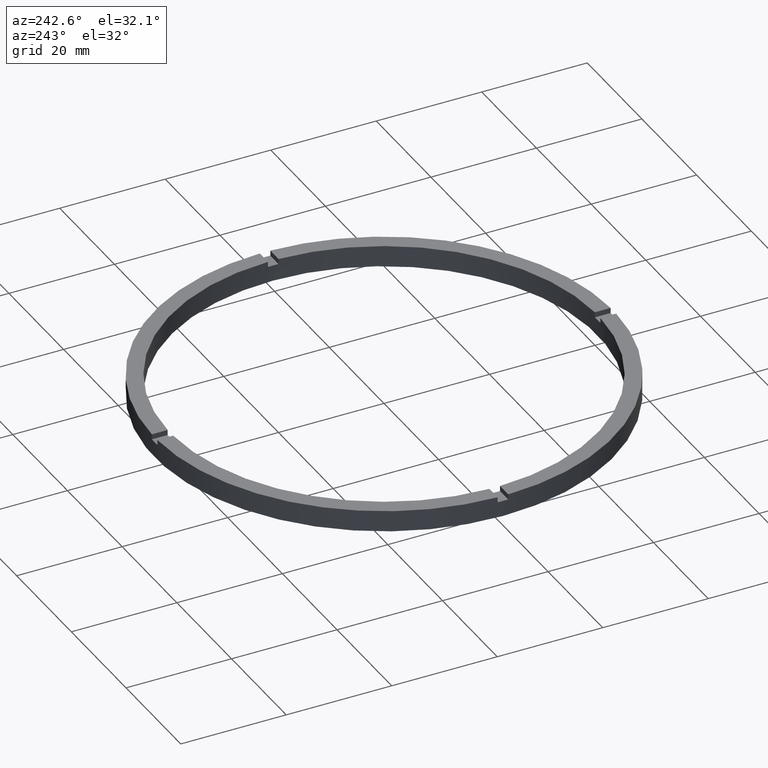
[diagram: clean part render]
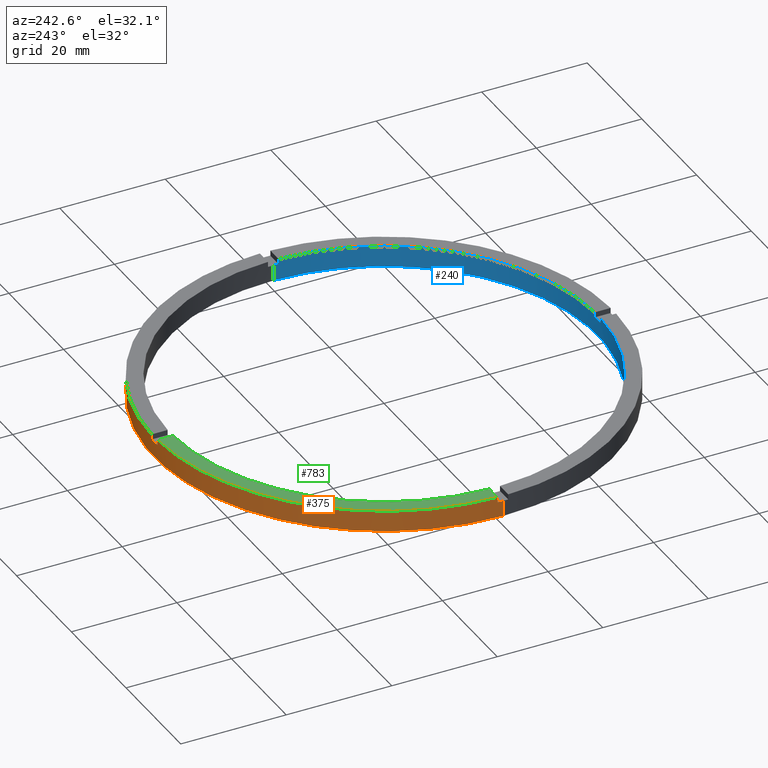
[diagram: same view with three faces highlighted in distinct colors, each labeled with its STEP entity id]
A machine part, auxiliary view with three faces highlighted in distinct colors.
Their STEP definitions:

[orange] entity #375 — the highlighted cylindrical surface (partial cylindrical patch) has radius 43.5 mm, axis along (-0, -0, -1).
#2 = VERTEX_POINT ( 'NONE', #589 ) ;
#18 = CIRCLE ( 'NONE', #631, 43.50000000000000000 ) ;
#22 = DIRECTION ( 'NONE',  ( 0.000000000000000000, -0.000000000000000000, 1.000000000000000000 ) ) ;
#24 = EDGE_CURVE ( 'NONE', #188, #97, #232, .T. ) ;
#34 = CIRCLE ( 'NONE', #379, 43.50000000000000000 ) ;
#42 = LINE ( 'NONE', #525, #305 ) ;
#51 = LINE ( 'NONE', #766, #328 ) ;
#52 = VERTEX_POINT ( 'NONE', #214 ) ;
#55 = LINE ( 'NONE', #92, #71 ) ;
#63 = AXIS2_PLACEMENT_3D ( 'NONE', #395, #373, #69 ) ;
#69 = DIRECTION ( 'NONE',  ( 1.000000000000000000, 0.000000000000000000, 0.000000000000000000 ) ) ;
#71 = VECTOR ( 'NONE', #250, 1000.000000000000000 ) ;
#75 = VERTEX_POINT ( 'NONE', #597 ) ;
#77 = DIRECTION ( 'NONE',  ( 0.000000000000000000, 0.000000000000000000, 1.000000000000000000 ) ) ;
#82 = ORIENTED_EDGE ( 'NONE', *, *, #398, .T. ) ;
#88 = ORIENTED_EDGE ( 'NONE', *, *, #110, .F. ) ;
#89 = EDGE_CURVE ( 'NONE', #188, #2, #742, .T. ) ;
#92 = CARTESIAN_POINT ( 'NONE',  ( 43.48850422812906658, 0.9999999999998436806, 4.000000000000000000 ) ) ;
#97 = VERTEX_POINT ( 'NONE', #503 ) ;
#102 = AXIS2_PLACEMENT_3D ( 'NONE', #401, #465, #693 ) ;
#106 = DIRECTION ( 'NONE',  ( -0.000000000000000000, -0.000000000000000000, -1.000000000000000000 ) ) ;
#110 = EDGE_CURVE ( 'NONE', #425, #737, #18, .T. ) ;
#116 = CARTESIAN_POINT ( 'NONE',  ( 0.000000000000000000, 0.000000000000000000, 0.000000000000000000 ) ) ;
#129 = CIRCLE ( 'NONE', #63, 43.50000000000000000 ) ;
#147 = CARTESIAN_POINT ( 'NONE',  ( 0.000000000000000000, 0.000000000000000000, 4.000000000000000000 ) ) ;
#148 = LINE ( 'NONE', #308, #458 ) ;
#149 = CARTESIAN_POINT ( 'NONE',  ( 43.48850422812906658, 0.9999999999998436806, 4.000000000000000000 ) ) ;
#154 = DIRECTION ( 'NONE',  ( 1.000000000000000000, 0.000000000000000000, 0.000000000000000000 ) ) ;
#162 = DIRECTION ( 'NONE',  ( -0.000000000000000000, -0.000000000000000000, -1.000000000000000000 ) ) ;
#188 = VERTEX_POINT ( 'NONE', #544 ) ;
#214 = CARTESIAN_POINT ( 'NONE',  ( -43.48850422812906658, 0.9999999999999705791, 3.000000000000000000 ) ) ;
#232 = CIRCLE ( 'NONE', #760, 43.50000000000000000 ) ;
#238 = CARTESIAN_POINT ( 'NONE',  ( -43.50000000000000000, 0.000000000000000000, 4.000000000000000000 ) ) ;
#250 = DIRECTION ( 'NONE',  ( -0.000000000000000000, -0.000000000000000000, -1.000000000000000000 ) ) ;
#251 = VERTEX_POINT ( 'NONE', #664 ) ;
#270 = ORIENTED_EDGE ( 'NONE', *, *, #357, .T. ) ;
#297 = CARTESIAN_POINT ( 'NONE',  ( 0.9999999999999740208, 43.48850422812906658, 4.000000000000000000 ) ) ;
#302 = DIRECTION ( 'NONE',  ( -1.000000000000000000, 0.000000000000000000, 0.000000000000000000 ) ) ;
#305 = VECTOR ( 'NONE', #162, 1000.000000000000000 ) ;
#308 = CARTESIAN_POINT ( 'NONE',  ( -43.48850422812906658, 0.9999999999999705791, 4.000000000000000000 ) ) ;
#310 = CYLINDRICAL_SURFACE ( 'NONE', #754, 43.50000000000000000 ) ;
#312 = EDGE_CURVE ( 'NONE', #334, #737, #55, .T. ) ;
#328 = VECTOR ( 'NONE', #408, 1000.000000000000000 ) ;
#332 = FACE_OUTER_BOUND ( 'NONE', #695, .T. ) ;
#334 = VERTEX_POINT ( 'NONE', #149 ) ;
#344 = ORIENTED_EDGE ( 'NONE', *, *, #549, .T. ) ;
#350 = DIRECTION ( 'NONE',  ( 1.000000000000000000, 0.000000000000000000, 0.000000000000000000 ) ) ;
#357 = EDGE_CURVE ( 'NONE', #558, #505, #51, .T. ) ;
#373 = DIRECTION ( 'NONE',  ( 0.000000000000000000, 0.000000000000000000, 1.000000000000000000 ) ) ;
#375 = ADVANCED_FACE ( 'NONE', ( #332 ), #310, .T. ) ;
#379 = AXIS2_PLACEMENT_3D ( 'NONE', #116, #605, #154 ) ;
#384 = DIRECTION ( 'NONE',  ( 0.000000000000000000, 0.000000000000000000, 1.000000000000000000 ) ) ;
#395 = CARTESIAN_POINT ( 'NONE',  ( 0.000000000000000000, 0.000000000000000000, 4.000000000000000000 ) ) ;
#398 = EDGE_CURVE ( 'NONE', #425, #572, #42, .T. ) ;
#399 = CARTESIAN_POINT ( 'NONE',  ( 0.9999999999999740208, 43.48850422812906658, 3.000000000000000000 ) ) ;
#400 = DIRECTION ( 'NONE',  ( 0.000000000000000000, 0.000000000000000000, 1.000000000000000000 ) ) ;
#401 = CARTESIAN_POINT ( 'NONE',  ( 0.000000000000000000, 0.000000000000000000, 3.000000000000000000 ) ) ;
#404 = EDGE_CURVE ( 'NONE', #75, #251, #559, .T. ) ;
#405 = EDGE_CURVE ( 'NONE', #52, #75, #481, .T. ) ;
#408 = DIRECTION ( 'NONE',  ( 0.000000000000000000, 0.000000000000000000, 1.000000000000000000 ) ) ;
#425 = VERTEX_POINT ( 'NONE', #601 ) ;
#443 = ORIENTED_EDGE ( 'NONE', *, *, #636, .T. ) ;
#444 = ORIENTED_EDGE ( 'NONE', *, *, #626, .F. ) ;
#447 = ORIENTED_EDGE ( 'NONE', *, *, #654, .F. ) ;
#454 = CIRCLE ( 'NONE', #632, 43.50000000000000000 ) ;
#456 = CARTESIAN_POINT ( 'NONE',  ( 0.000000000000000000, 0.000000000000000000, 4.000000000000000000 ) ) ;
#458 = VECTOR ( 'NONE', #77, 1000.000000000000000 ) ;
#459 = CARTESIAN_POINT ( 'NONE',  ( -1.000000000000025979, 43.48850422812906658, 4.000000000000000000 ) ) ;
#465 = DIRECTION ( 'NONE',  ( 0.000000000000000000, 0.000000000000000000, 1.000000000000000000 ) ) ;
#469 = CARTESIAN_POINT ( 'NONE',  ( 43.50000000000000000, 5.327213576290986044E-15, 0.000000000000000000 ) ) ;
#481 = CIRCLE ( 'NONE', #102, 43.50000000000000000 ) ;
#482 = VECTOR ( 'NONE', #106, 1000.000000000000000 ) ;
#503 = CARTESIAN_POINT ( 'NONE',  ( -43.48850422812906658, 0.9999999999999705791, 4.000000000000000000 ) ) ;
#505 = VERTEX_POINT ( 'NONE', #297 ) ;
#520 = DIRECTION ( 'NONE',  ( 1.000000000000000000, 0.000000000000000000, 0.000000000000000000 ) ) ;
#521 = DIRECTION ( 'NONE',  ( -0.000000000000000000, -0.000000000000000000, -1.000000000000000000 ) ) ;
#524 = CARTESIAN_POINT ( 'NONE',  ( 0.000000000000000000, 0.000000000000000000, 3.000000000000000000 ) ) ;
#525 = CARTESIAN_POINT ( 'NONE',  ( 43.50000000000000000, 5.327213576290986044E-15, 4.000000000000000000 ) ) ;
#535 = ORIENTED_EDGE ( 'NONE', *, *, #404, .F. ) ;
#544 = CARTESIAN_POINT ( 'NONE',  ( -1.000000000000025979, 43.48850422812906658, 4.000000000000000000 ) ) ;
#549 = EDGE_CURVE ( 'NONE', #572, #251, #34, .T. ) ;
#558 = VERTEX_POINT ( 'NONE', #399 ) ;
#559 = LINE ( 'NONE', #238, #562 ) ;
#562 = VECTOR ( 'NONE', #656, 1000.000000000000000 ) ;
#568 = CARTESIAN_POINT ( 'NONE',  ( 43.48850422812906658, 0.9999999999998436806, 3.000000000000000000 ) ) ;
#572 = VERTEX_POINT ( 'NONE', #469 ) ;
#589 = CARTESIAN_POINT ( 'NONE',  ( -1.000000000000025979, 43.48850422812906658, 3.000000000000000000 ) ) ;
#597 = CARTESIAN_POINT ( 'NONE',  ( -43.50000000000000000, 0.000000000000000000, 3.000000000000000000 ) ) ;
#599 = ORIENTED_EDGE ( 'NONE', *, *, #24, .F. ) ;
#601 = CARTESIAN_POINT ( 'NONE',  ( 43.50000000000000000, 5.327213576290986044E-15, 3.000000000000000000 ) ) ;
#605 = DIRECTION ( 'NONE',  ( 0.000000000000000000, 0.000000000000000000, 1.000000000000000000 ) ) ;
#608 = ORIENTED_EDGE ( 'NONE', *, *, #405, .F. ) ;
#626 = EDGE_CURVE ( 'NONE', #334, #505, #129, .T. ) ;
#631 = AXIS2_PLACEMENT_3D ( 'NONE', #524, #400, #673 ) ;
#632 = AXIS2_PLACEMENT_3D ( 'NONE', #767, #22, #350 ) ;
#636 = EDGE_CURVE ( 'NONE', #52, #97, #148, .T. ) ;
#654 = EDGE_CURVE ( 'NONE', #558, #2, #454, .T. ) ;
#656 = DIRECTION ( 'NONE',  ( -0.000000000000000000, -0.000000000000000000, -1.000000000000000000 ) ) ;
#664 = CARTESIAN_POINT ( 'NONE',  ( -43.50000000000000000, 0.000000000000000000, 0.000000000000000000 ) ) ;
#673 = DIRECTION ( 'NONE',  ( 1.000000000000000000, 0.000000000000000000, 0.000000000000000000 ) ) ;
#693 = DIRECTION ( 'NONE',  ( 1.000000000000000000, 0.000000000000000000, 0.000000000000000000 ) ) ;
#695 = EDGE_LOOP ( 'NONE', ( #88, #82, #344, #535, #608, #443, #599, #702, #447, #270, #444, #721 ) ) ;
#702 = ORIENTED_EDGE ( 'NONE', *, *, #89, .T. ) ;
#721 = ORIENTED_EDGE ( 'NONE', *, *, #312, .T. ) ;
#737 = VERTEX_POINT ( 'NONE', #568 ) ;
#742 = LINE ( 'NONE', #459, #482 ) ;
#754 = AXIS2_PLACEMENT_3D ( 'NONE', #456, #521, #302 ) ;
#760 = AXIS2_PLACEMENT_3D ( 'NONE', #147, #384, #520 ) ;
#766 = CARTESIAN_POINT ( 'NONE',  ( 0.9999999999999740208, 43.48850422812906658, 4.000000000000000000 ) ) ;
#767 = CARTESIAN_POINT ( 'NONE',  ( 0.000000000000000000, 0.000000000000000000, 3.000000000000000000 ) ) ;

[blue] entity #240 — the highlighted cylindrical surface (partial cylindrical patch) has radius 40.5 mm, axis along (-0, -0, -1).
#7 = ORIENTED_EDGE ( 'NONE', *, *, #412, .F. ) ;
#10 = ORIENTED_EDGE ( 'NONE', *, *, #126, .T. ) ;
#16 = DIRECTION ( 'NONE',  ( 0.000000000000000000, 0.000000000000000000, 1.000000000000000000 ) ) ;
#20 = VECTOR ( 'NONE', #368, 1000.000000000000000 ) ;
#26 = CARTESIAN_POINT ( 'NONE',  ( 0.9999999999998412381, -40.48765243873742037, 3.000000000000000000 ) ) ;
#32 = CIRCLE ( 'NONE', #233, 40.50000000000000000 ) ;
#48 = FACE_OUTER_BOUND ( 'NONE', #511, .T. ) ;
#50 = CIRCLE ( 'NONE', #464, 40.50000000000000000 ) ;
#54 = VERTEX_POINT ( 'NONE', #109 ) ;
#57 = CIRCLE ( 'NONE', #101, 40.50000000000000000 ) ;
#67 = LINE ( 'NONE', #185, #319 ) ;
#78 = EDGE_CURVE ( 'NONE', #317, #54, #746, .T. ) ;
#90 = VERTEX_POINT ( 'NONE', #115 ) ;
#95 = DIRECTION ( 'NONE',  ( 1.000000000000000000, 0.000000000000000000, 0.000000000000000000 ) ) ;
#96 = VERTEX_POINT ( 'NONE', #153 ) ;
#101 = AXIS2_PLACEMENT_3D ( 'NONE', #553, #630, #95 ) ;
#109 = CARTESIAN_POINT ( 'NONE',  ( -1.000000000000158762, -40.48765243873741326, 4.000000000000000000 ) ) ;
#115 = CARTESIAN_POINT ( 'NONE',  ( 40.48765243873741326, -1.000000000000156541, 3.000000000000000000 ) ) ;
#118 = EDGE_CURVE ( 'NONE', #585, #96, #296, .T. ) ;
#122 = CARTESIAN_POINT ( 'NONE',  ( 0.000000000000000000, 0.000000000000000000, 4.000000000000000000 ) ) ;
#126 = EDGE_CURVE ( 'NONE', #428, #54, #32, .T. ) ;
#131 = DIRECTION ( 'NONE',  ( -0.000000000000000000, -0.000000000000000000, -1.000000000000000000 ) ) ;
#140 = CARTESIAN_POINT ( 'NONE',  ( 0.000000000000000000, 0.000000000000000000, 4.000000000000000000 ) ) ;
#153 = CARTESIAN_POINT ( 'NONE',  ( 40.50000000000000000, 4.959819536546780600E-15, 0.000000000000000000 ) ) ;
#159 = EDGE_CURVE ( 'NONE', #565, #163, #50, .T. ) ;
#161 = DIRECTION ( 'NONE',  ( 1.000000000000000000, 0.000000000000000000, 0.000000000000000000 ) ) ;
#163 = VERTEX_POINT ( 'NONE', #245 ) ;
#185 = CARTESIAN_POINT ( 'NONE',  ( -40.50000000000000000, 0.000000000000000000, 4.000000000000000000 ) ) ;
#192 = ORIENTED_EDGE ( 'NONE', *, *, #265, .T. ) ;
#193 = VERTEX_POINT ( 'NONE', #479 ) ;
#198 = ORIENTED_EDGE ( 'NONE', *, *, #366, .F. ) ;
#207 = CIRCLE ( 'NONE', #650, 40.50000000000000000 ) ;
#209 = DIRECTION ( 'NONE',  ( 1.000000000000000000, 0.000000000000000000, 0.000000000000000000 ) ) ;
#219 = CARTESIAN_POINT ( 'NONE',  ( 40.50000000000000000, 4.959819536546780600E-15, 4.000000000000000000 ) ) ;
#223 = CARTESIAN_POINT ( 'NONE',  ( 40.50000000000000000, 4.959819536546780600E-15, 3.000000000000000000 ) ) ;
#231 = CARTESIAN_POINT ( 'NONE',  ( 40.48765243873741326, -1.000000000000156541, 4.000000000000000000 ) ) ;
#233 = AXIS2_PLACEMENT_3D ( 'NONE', #140, #692, #209 ) ;
#240 = ADVANCED_FACE ( 'NONE', ( #48 ), #284, .F. ) ;
#245 = CARTESIAN_POINT ( 'NONE',  ( 40.48765243873741326, -1.000000000000156541, 4.000000000000000000 ) ) ;
#252 = DIRECTION ( 'NONE',  ( 1.000000000000000000, 0.000000000000000000, 0.000000000000000000 ) ) ;
#256 = DIRECTION ( 'NONE',  ( -1.000000000000000000, 0.000000000000000000, 0.000000000000000000 ) ) ;
#265 = EDGE_CURVE ( 'NONE', #777, #453, #57, .T. ) ;
#278 = EDGE_CURVE ( 'NONE', #777, #193, #67, .T. ) ;
#279 = ORIENTED_EDGE ( 'NONE', *, *, #522, .F. ) ;
#284 = CYLINDRICAL_SURFACE ( 'NONE', #669, 40.50000000000000000 ) ;
#294 = DIRECTION ( 'NONE',  ( 0.000000000000000000, 0.000000000000000000, 1.000000000000000000 ) ) ;
#296 = LINE ( 'NONE', #219, #20 ) ;
#301 = VECTOR ( 'NONE', #294, 1000.000000000000000 ) ;
#311 = DIRECTION ( 'NONE',  ( 0.000000000000000000, 0.000000000000000000, 1.000000000000000000 ) ) ;
#317 = VERTEX_POINT ( 'NONE', #376 ) ;
#318 = VECTOR ( 'NONE', #475, 1000.000000000000000 ) ;
#319 = VECTOR ( 'NONE', #131, 1000.000000000000000 ) ;
#323 = EDGE_CURVE ( 'NONE', #317, #679, #325, .T. ) ;
#325 = CIRCLE ( 'NONE', #377, 40.50000000000000000 ) ;
#339 = AXIS2_PLACEMENT_3D ( 'NONE', #675, #16, #593 ) ;
#356 = EDGE_CURVE ( 'NONE', #428, #453, #575, .T. ) ;
#365 = CARTESIAN_POINT ( 'NONE',  ( 0.9999999999998412381, -40.48765243873742037, 4.000000000000000000 ) ) ;
#366 = EDGE_CURVE ( 'NONE', #565, #679, #595, .T. ) ;
#368 = DIRECTION ( 'NONE',  ( -0.000000000000000000, -0.000000000000000000, -1.000000000000000000 ) ) ;
#372 = DIRECTION ( 'NONE',  ( -0.000000000000000000, -0.000000000000000000, -1.000000000000000000 ) ) ;
#374 = CARTESIAN_POINT ( 'NONE',  ( 0.000000000000000000, 0.000000000000000000, 4.000000000000000000 ) ) ;
#376 = CARTESIAN_POINT ( 'NONE',  ( -1.000000000000158762, -40.48765243873741326, 3.000000000000000000 ) ) ;
#377 = AXIS2_PLACEMENT_3D ( 'NONE', #538, #690, #700 ) ;
#407 = CARTESIAN_POINT ( 'NONE',  ( -40.48765243873741326, -1.000000000000028866, 4.000000000000000000 ) ) ;
#412 = EDGE_CURVE ( 'NONE', #193, #96, #207, .T. ) ;
#428 = VERTEX_POINT ( 'NONE', #407 ) ;
#433 = ORIENTED_EDGE ( 'NONE', *, *, #771, .T. ) ;
#453 = VERTEX_POINT ( 'NONE', #660 ) ;
#464 = AXIS2_PLACEMENT_3D ( 'NONE', #374, #311, #161 ) ;
#475 = DIRECTION ( 'NONE',  ( -0.000000000000000000, -0.000000000000000000, -1.000000000000000000 ) ) ;
#479 = CARTESIAN_POINT ( 'NONE',  ( -40.50000000000000000, 0.000000000000000000, 0.000000000000000000 ) ) ;
#480 = VECTOR ( 'NONE', #759, 1000.000000000000000 ) ;
#493 = DIRECTION ( 'NONE',  ( -0.000000000000000000, -0.000000000000000000, -1.000000000000000000 ) ) ;
#511 = EDGE_LOOP ( 'NONE', ( #433, #603, #7, #533, #192, #537, #10, #682, #739, #198, #604, #279 ) ) ;
#522 = EDGE_CURVE ( 'NONE', #90, #163, #547, .T. ) ;
#532 = DIRECTION ( 'NONE',  ( 0.000000000000000000, 0.000000000000000000, 1.000000000000000000 ) ) ;
#533 = ORIENTED_EDGE ( 'NONE', *, *, #278, .F. ) ;
#537 = ORIENTED_EDGE ( 'NONE', *, *, #356, .F. ) ;
#538 = CARTESIAN_POINT ( 'NONE',  ( 0.000000000000000000, 0.000000000000000000, 3.000000000000000000 ) ) ;
#547 = LINE ( 'NONE', #231, #301 ) ;
#553 = CARTESIAN_POINT ( 'NONE',  ( 0.000000000000000000, 0.000000000000000000, 3.000000000000000000 ) ) ;
#565 = VERTEX_POINT ( 'NONE', #365 ) ;
#575 = LINE ( 'NONE', #775, #588 ) ;
#585 = VERTEX_POINT ( 'NONE', #223 ) ;
#588 = VECTOR ( 'NONE', #372, 1000.000000000000000 ) ;
#593 = DIRECTION ( 'NONE',  ( 1.000000000000000000, 0.000000000000000000, 0.000000000000000000 ) ) ;
#595 = LINE ( 'NONE', #622, #318 ) ;
#603 = ORIENTED_EDGE ( 'NONE', *, *, #118, .T. ) ;
#604 = ORIENTED_EDGE ( 'NONE', *, *, #159, .T. ) ;
#612 = CARTESIAN_POINT ( 'NONE',  ( 0.000000000000000000, 0.000000000000000000, 0.000000000000000000 ) ) ;
#622 = CARTESIAN_POINT ( 'NONE',  ( 0.9999999999998412381, -40.48765243873742037, 4.000000000000000000 ) ) ;
#630 = DIRECTION ( 'NONE',  ( 0.000000000000000000, 0.000000000000000000, 1.000000000000000000 ) ) ;
#641 = CARTESIAN_POINT ( 'NONE',  ( -1.000000000000158762, -40.48765243873741326, 4.000000000000000000 ) ) ;
#650 = AXIS2_PLACEMENT_3D ( 'NONE', #612, #532, #252 ) ;
#660 = CARTESIAN_POINT ( 'NONE',  ( -40.48765243873741326, -1.000000000000028866, 3.000000000000000000 ) ) ;
#669 = AXIS2_PLACEMENT_3D ( 'NONE', #122, #493, #256 ) ;
#675 = CARTESIAN_POINT ( 'NONE',  ( 0.000000000000000000, 0.000000000000000000, 3.000000000000000000 ) ) ;
#679 = VERTEX_POINT ( 'NONE', #26 ) ;
#682 = ORIENTED_EDGE ( 'NONE', *, *, #78, .F. ) ;
#690 = DIRECTION ( 'NONE',  ( -0.000000000000000000, 0.000000000000000000, 1.000000000000000000 ) ) ;
#692 = DIRECTION ( 'NONE',  ( 0.000000000000000000, 0.000000000000000000, 1.000000000000000000 ) ) ;
#700 = DIRECTION ( 'NONE',  ( 1.000000000000000000, 0.000000000000000000, 0.000000000000000000 ) ) ;
#710 = CIRCLE ( 'NONE', #339, 40.50000000000000000 ) ;
#739 = ORIENTED_EDGE ( 'NONE', *, *, #323, .T. ) ;
#746 = LINE ( 'NONE', #641, #480 ) ;
#759 = DIRECTION ( 'NONE',  ( 0.000000000000000000, 0.000000000000000000, 1.000000000000000000 ) ) ;
#762 = CARTESIAN_POINT ( 'NONE',  ( -40.50000000000000000, 0.000000000000000000, 3.000000000000000000 ) ) ;
#771 = EDGE_CURVE ( 'NONE', #90, #585, #710, .T. ) ;
#775 = CARTESIAN_POINT ( 'NONE',  ( -40.48765243873741326, -1.000000000000028866, 4.000000000000000000 ) ) ;
#777 = VERTEX_POINT ( 'NONE', #762 ) ;

[green] entity #783 — the highlighted planar face has unit normal (0, 0, 1).
#5 = ORIENTED_EDGE ( 'NONE', *, *, #720, .F. ) ;
#8 = VECTOR ( 'NONE', #370, 1000.000000000000000 ) ;
#24 = EDGE_CURVE ( 'NONE', #188, #97, #232, .T. ) ;
#27 = LINE ( 'NONE', #687, #8 ) ;
#84 = VERTEX_POINT ( 'NONE', #111 ) ;
#97 = VERTEX_POINT ( 'NONE', #503 ) ;
#103 = CARTESIAN_POINT ( 'NONE',  ( 0.000000000000000000, 0.000000000000000000, 4.000000000000000000 ) ) ;
#111 = CARTESIAN_POINT ( 'NONE',  ( -1.000000000000025979, 40.48765243873741326, 4.000000000000000000 ) ) ;
#137 = AXIS2_PLACEMENT_3D ( 'NONE', #411, #471, #628 ) ;
#145 = PLANE ( 'NONE',  #348 ) ;
#147 = CARTESIAN_POINT ( 'NONE',  ( 0.000000000000000000, 0.000000000000000000, 4.000000000000000000 ) ) ;
#170 = VECTOR ( 'NONE', #640, 1000.000000000000000 ) ;
#187 = ORIENTED_EDGE ( 'NONE', *, *, #24, .T. ) ;
#188 = VERTEX_POINT ( 'NONE', #544 ) ;
#191 = EDGE_CURVE ( 'NONE', #84, #689, #560, .T. ) ;
#200 = CARTESIAN_POINT ( 'NONE',  ( -40.48765243873742037, 0.9999999999999711342, 4.000000000000000000 ) ) ;
#203 = LINE ( 'NONE', #427, #170 ) ;
#211 = DIRECTION ( 'NONE',  ( 0.000000000000000000, 0.000000000000000000, 1.000000000000000000 ) ) ;
#232 = CIRCLE ( 'NONE', #760, 43.50000000000000000 ) ;
#348 = AXIS2_PLACEMENT_3D ( 'NONE', #103, #211, #504 ) ;
#370 = DIRECTION ( 'NONE',  ( -0.000000000000000000, -1.000000000000000000, -0.000000000000000000 ) ) ;
#384 = DIRECTION ( 'NONE',  ( 0.000000000000000000, 0.000000000000000000, 1.000000000000000000 ) ) ;
#411 = CARTESIAN_POINT ( 'NONE',  ( 0.000000000000000000, 0.000000000000000000, 4.000000000000000000 ) ) ;
#427 = CARTESIAN_POINT ( 'NONE',  ( -33.50000000000018474, 0.9999999999999724665, 4.000000000000000000 ) ) ;
#471 = DIRECTION ( 'NONE',  ( 0.000000000000000000, 0.000000000000000000, 1.000000000000000000 ) ) ;
#498 = ORIENTED_EDGE ( 'NONE', *, *, #191, .F. ) ;
#503 = CARTESIAN_POINT ( 'NONE',  ( -43.48850422812906658, 0.9999999999999705791, 4.000000000000000000 ) ) ;
#504 = DIRECTION ( 'NONE',  ( 1.000000000000000000, 0.000000000000000000, -0.000000000000000000 ) ) ;
#508 = EDGE_CURVE ( 'NONE', #188, #84, #27, .T. ) ;
#520 = DIRECTION ( 'NONE',  ( 1.000000000000000000, 0.000000000000000000, 0.000000000000000000 ) ) ;
#544 = CARTESIAN_POINT ( 'NONE',  ( -1.000000000000025979, 43.48850422812906658, 4.000000000000000000 ) ) ;
#560 = CIRCLE ( 'NONE', #137, 40.50000000000000000 ) ;
#628 = DIRECTION ( 'NONE',  ( 1.000000000000000000, 0.000000000000000000, 0.000000000000000000 ) ) ;
#640 = DIRECTION ( 'NONE',  ( -1.000000000000000000, -1.951563910473907735E-16, 0.000000000000000000 ) ) ;
#687 = CARTESIAN_POINT ( 'NONE',  ( -1.000000000000025979, 33.49999999999999289, 4.000000000000000000 ) ) ;
#689 = VERTEX_POINT ( 'NONE', #200 ) ;
#717 = FACE_OUTER_BOUND ( 'NONE', #778, .T. ) ;
#720 = EDGE_CURVE ( 'NONE', #689, #97, #203, .T. ) ;
#725 = ORIENTED_EDGE ( 'NONE', *, *, #508, .F. ) ;
#760 = AXIS2_PLACEMENT_3D ( 'NONE', #147, #384, #520 ) ;
#778 = EDGE_LOOP ( 'NONE', ( #725, #187, #5, #498 ) ) ;
#783 = ADVANCED_FACE ( 'NONE', ( #717 ), #145, .T. ) ;